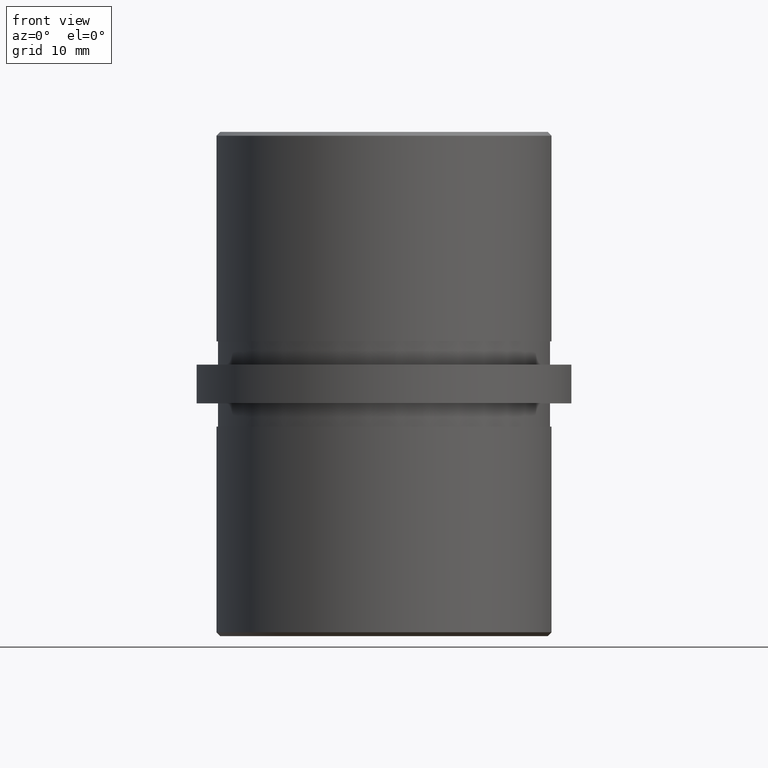
[diagram: clean part render]
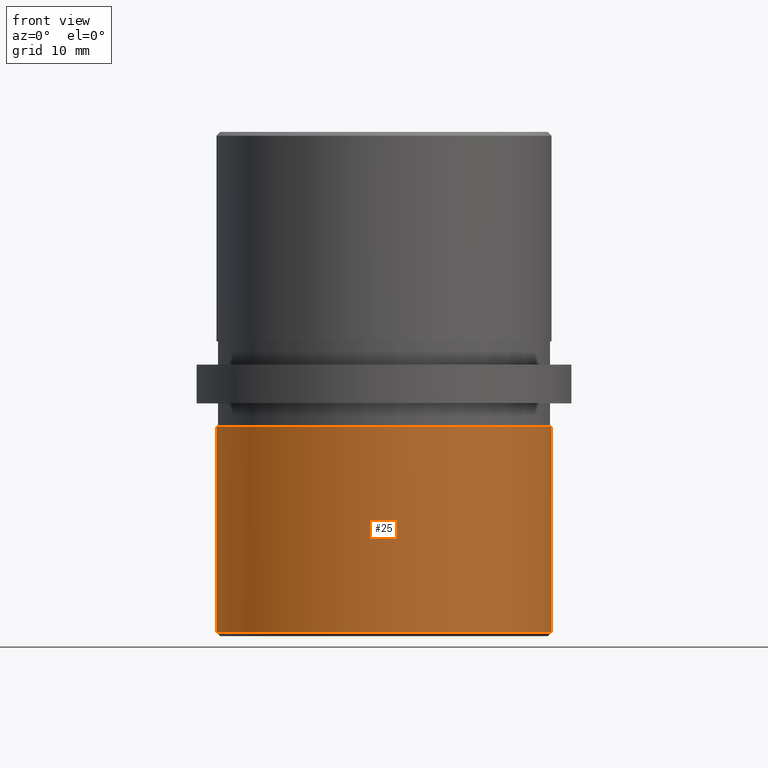
[diagram: same view with one face highlighted and labeled with its STEP entity id]
A machine part, front view. The second image highlights one B-rep face of the part: STEP entity #25.
In plain terms, the highlighted cylindrical surface (partial cylindrical patch) has radius 21.6 mm, axis along (-0, -0, 1).
Its self-contained STEP definition (entity closure, byte-faithful):
#25 = ADVANCED_FACE ( 'NONE', ( #4188 ), #6767, .T. ) ;
#838 = VECTOR ( 'NONE', #3604, 1000.000000000000000 ) ;
#1138 = AXIS2_PLACEMENT_3D ( 'NONE', #1401, #14092, #19636 ) ;
#1240 = EDGE_CURVE ( 'NONE', #17351, #13891, #2434, .T. ) ;
#1401 = CARTESIAN_POINT ( 'NONE',  ( 0.0000000000000000000, 0.0000000000000000000, -5.500000000000000000 ) ) ;
#2434 = LINE ( 'NONE', #20652, #16327 ) ;
#3604 = DIRECTION ( 'NONE',  ( -0.0000000000000000000, -0.0000000000000000000, 1.000000000000000000 ) ) ;
#3872 = VERTEX_POINT ( 'NONE', #19898 ) ;
#4188 = FACE_OUTER_BOUND ( 'NONE', #11304, .T. ) ;
#4847 = CARTESIAN_POINT ( 'NONE',  ( 0.0000000000000000000, 0.0000000000000000000, -32.50000000000000000 ) ) ;
#4944 = EDGE_CURVE ( 'NONE', #23312, #17351, #20778, .T. ) ;
#5680 = LINE ( 'NONE', #7334, #838 ) ;
#6659 = EDGE_CURVE ( 'NONE', #3872, #13891, #20470, .T. ) ;
#6767 = CYLINDRICAL_SURFACE ( 'NONE', #9285, 21.59999999999999800 ) ;
#7334 = CARTESIAN_POINT ( 'NONE',  ( -21.59999999999999800, 0.0000000000000000000, -32.50000000000000000 ) ) ;
#9285 = AXIS2_PLACEMENT_3D ( 'NONE', #4847, #17566, #20924 ) ;
#9674 = ORIENTED_EDGE ( 'NONE', *, *, #6659, .F. ) ;
#11133 = ORIENTED_EDGE ( 'NONE', *, *, #4944, .T. ) ;
#11304 = EDGE_LOOP ( 'NONE', ( #11133, #20570, #9674, #19970 ) ) ;
#11783 = DIRECTION ( 'NONE',  ( -0.0000000000000000000, -0.0000000000000000000, 1.000000000000000000 ) ) ;
#12664 = CARTESIAN_POINT ( 'NONE',  ( 21.59999999999999800, -2.645237086158282600E-015, -31.99999999999998600 ) ) ;
#13461 = CARTESIAN_POINT ( 'NONE',  ( 0.0000000000000000000, 0.0000000000000000000, -31.99999999999998600 ) ) ;
#13891 = VERTEX_POINT ( 'NONE', #22813 ) ;
#14092 = DIRECTION ( 'NONE',  ( -0.0000000000000000000, -0.0000000000000000000, 1.000000000000000000 ) ) ;
#16327 = VECTOR ( 'NONE', #11783, 1000.000000000000000 ) ;
#17196 = CARTESIAN_POINT ( 'NONE',  ( -21.59999999999999800, 0.0000000000000000000, -31.99999999999998600 ) ) ;
#17351 = VERTEX_POINT ( 'NONE', #12664 ) ;
#17566 = DIRECTION ( 'NONE',  ( -0.0000000000000000000, -0.0000000000000000000, 1.000000000000000000 ) ) ;
#18506 = EDGE_CURVE ( 'NONE', #23312, #3872, #5680, .T. ) ;
#18833 = DIRECTION ( 'NONE',  ( -1.000000000000000000, 0.0000000000000000000, 0.0000000000000000000 ) ) ;
#19636 = DIRECTION ( 'NONE',  ( 1.000000000000000000, 0.0000000000000000000, 0.0000000000000000000 ) ) ;
#19898 = CARTESIAN_POINT ( 'NONE',  ( -21.59999999999999800, 0.0000000000000000000, -5.500000000000000000 ) ) ;
#19965 = AXIS2_PLACEMENT_3D ( 'NONE', #13461, #22584, #18833 ) ;
#19970 = ORIENTED_EDGE ( 'NONE', *, *, #18506, .F. ) ;
#20470 = CIRCLE ( 'NONE', #1138, 21.59999999999999800 ) ;
#20570 = ORIENTED_EDGE ( 'NONE', *, *, #1240, .T. ) ;
#20652 = CARTESIAN_POINT ( 'NONE',  ( 21.59999999999999800, -2.645237086158282600E-015, -32.50000000000000000 ) ) ;
#20778 = CIRCLE ( 'NONE', #19965, 21.59999999999999800 ) ;
#20924 = DIRECTION ( 'NONE',  ( -1.000000000000000000, 0.0000000000000000000, 0.0000000000000000000 ) ) ;
#22584 = DIRECTION ( 'NONE',  ( -0.0000000000000000000, -0.0000000000000000000, 1.000000000000000000 ) ) ;
#22813 = CARTESIAN_POINT ( 'NONE',  ( 21.59999999999999800, -2.645237086158282600E-015, -5.500000000000000000 ) ) ;
#23312 = VERTEX_POINT ( 'NONE', #17196 ) ;